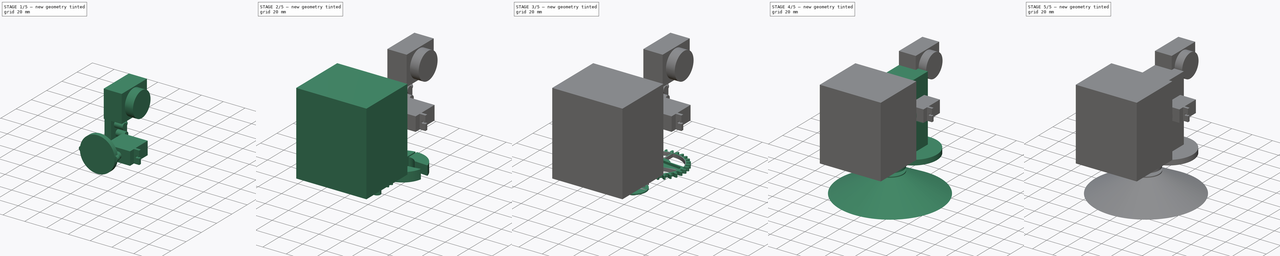
[diagram: build sequence overview — one tinted view per stage of 5, left to right]
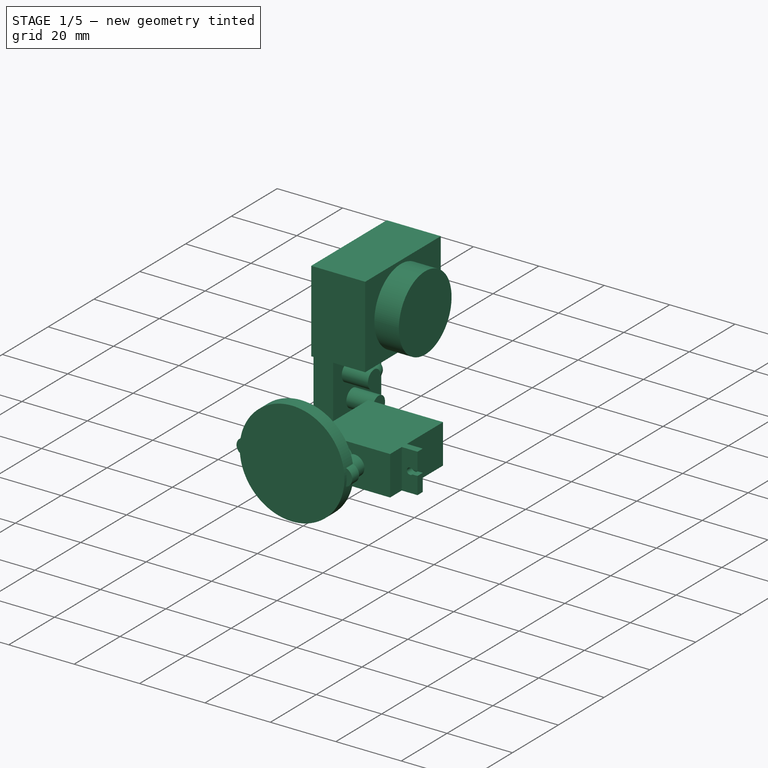
[diagram: stage 1 of 5 — iso view after this stage's code; geometry added in this stage tinted green]
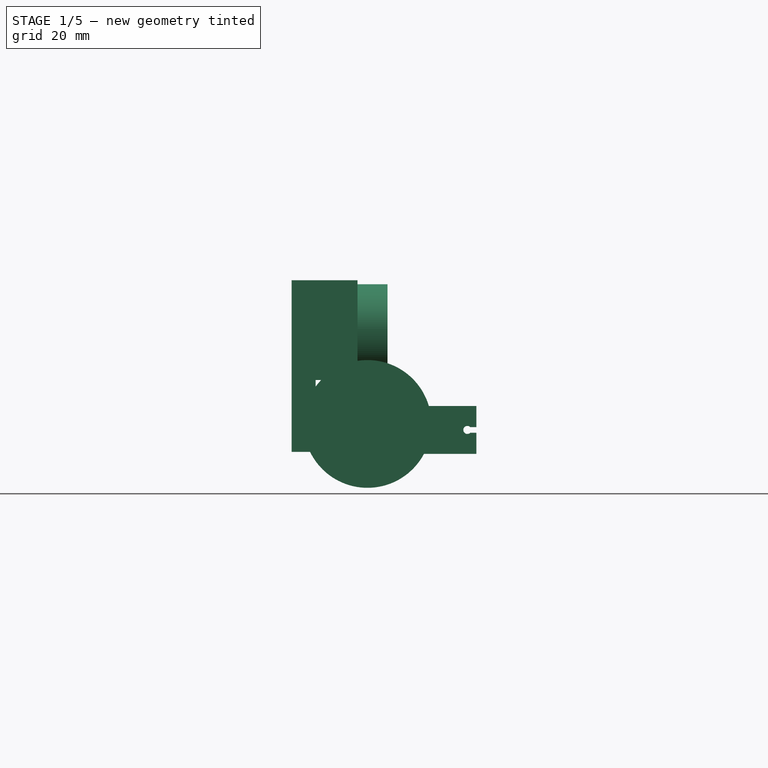
[diagram: stage 1 of 5 — front view after this stage's code; geometry added in this stage tinted green]
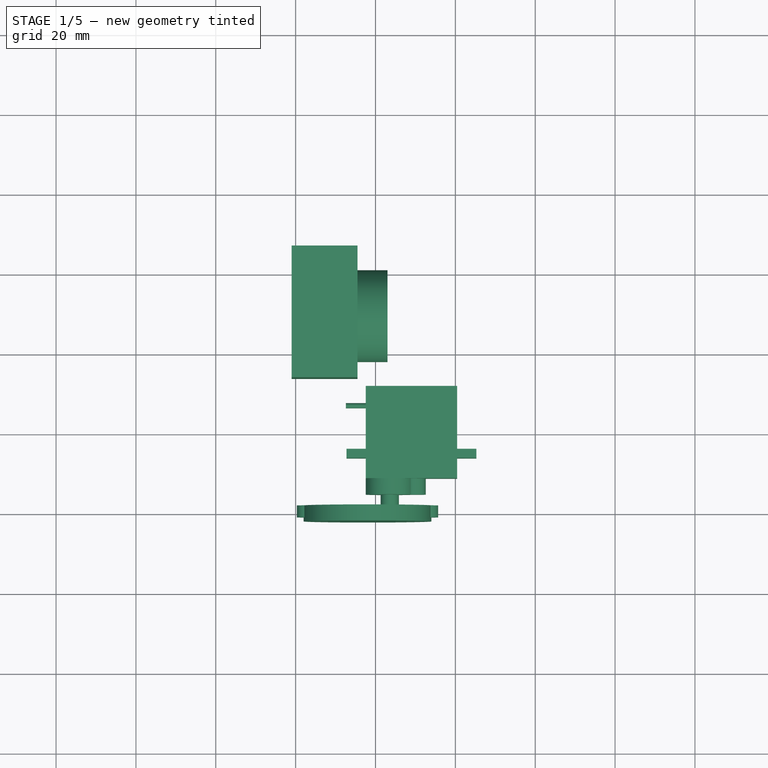
[diagram: stage 1 of 5 — top view after this stage's code; geometry added in this stage tinted green]
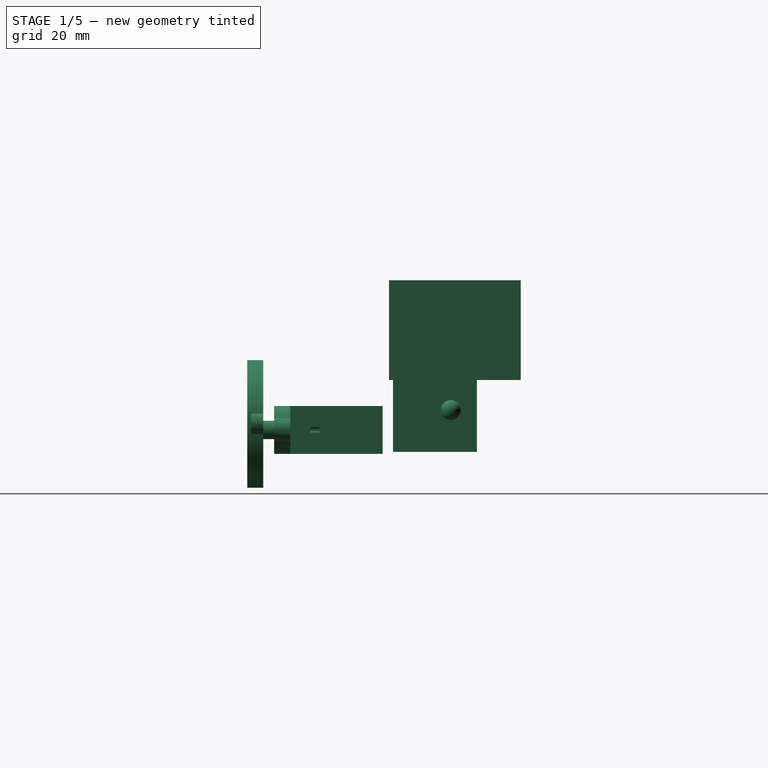
[diagram: stage 1 of 5 — right view after this stage's code; geometry added in this stage tinted green]
FCSTD DOCUMENT  (FreeCAD 0.15R4671 (Git))
Label: base-top-01
License: CC-BY 3.0
LicenseURL: http://creativecommons.org/licenses/by/3.0/
objects: Part::Cylinder×23, Part::Feature×10, Part::FeaturePython×8, Part::Cut×7, PartDesign::Pad×6, Part::MultiFuse×6, Sketcher::SketchObject×4, Part::Box×4, App::DocumentObjectGroup×3, Part::Cone×1, Part::Part2DObjectPython×1
note: 76 computed .brp shape members not serialized (recipe doc carries the construction recipe); baked Part::Feature solids carry a one-line shape summary decoded from their .brp

FEATURE [Part::Cylinder] Cylinder032  label="Cylinder021-holder-servo"
  Angle = 360
  Height = 4
  Placement = pos=(-2,-18,3.5) rot=(1,0,0;1.5708rad)
  Radius = 16
FEATURE [Sketcher::SketchObject] Sketch015
  Placement = pos=(0,-18,0) rot=(1,0,0;1.5708rad)
  sketch-geometry (6):
    g0: LineSegment StartX=-17.2709 StartY=6 StartZ=0 EndX=-2 EndY=8 EndZ=0
    g1: LineSegment StartX=-2 StartY=8 StartZ=0 EndX=13.457 EndY=6.16585 EndZ=0
    g2: LineSegment StartX=13.4049 StartY=0.850143 StartZ=0 EndX=-2 EndY=-1 EndZ=0
    g3: LineSegment StartX=-2 StartY=-1 StartZ=0 EndX=-17.581 EndY=1.17472 EndZ=0
    g4: ArcOfCircle CenterX=13 CenterY=3.51222 CenterZ=0 NormalX=0 NormalY=0 NormalZ=1 Radius=2.69269 StartAngle=4.86332 EndAngle=7.68342
    g5: ArcOfCircle CenterX=-17.2623 CenterY=3.57685 CenterZ=0 NormalX=0 NormalY=0 NormalZ=1 Radius=2.42317 StartAngle=1.57431 EndAngle=4.5805
  constraints (6):
    c: Coincident(g0,g1)
    c: Coincident(g2,g3)
    c: Coincident(g1,g4)
    c: Coincident(g4,g2)
    c: Coincident(g5,g0)
    c: Coincident(g5,g3)
FEATURE [PartDesign::Pad] Pad018
  Length = 3
  Length2 = 100
  Placement = pos=(0,-18,0) rot=(1,0,0;1.5708rad)
  Sketch = -> Sketch015
  Type = 0
FEATURE [Part::Feature] Part__Feature004  label="hc-sr501"
  Placement = pos=(-8,30,27) rot=(0.57735,0.57735,0.57735;2.0944rad)
  shape: bbox 23.1 x 32 x 24 mm, 68 faces (baked)
FEATURE [Part::Feature] Part__Feature005  label="led-5mm"
  Placement = pos=(-19,21,9) rot=(0,1,0;1.5708rad)
  shape: bbox 8.5 x 6 x 6 mm, 6 faces (baked)
FEATURE [Part::FeaturePython] Clone  label="Clone of led-5mm"  # Draft clone (typed FeaturePython)
  Objects = -> [Part__Feature005]
  Placement = pos=(-19,29,7) rot=(0,1,0;1.5708rad)
  Scale = (1,1,1)
FEATURE [Part::FeaturePython] Clone001  label="Clone of led-5mm001"  # Draft clone (typed FeaturePython)
  Objects = -> [Part__Feature005]
  Placement = pos=(-19,23,1) rot=(0,1,0;1.5708rad)
  Scale = (1,1,1)
FEATURE [Part::Box] Box002  label="hc-sc-501-cover-box"
  Height = 25
  Length = 16.5
  Placement = pos=(-21,13.5,14.5) rot=(0,0,1;0rad)
  Width = 33
FEATURE [Part::Box] Box003  label="Cube001"
  Height = 18
  Length = 6
  Placement = pos=(-21,14.5,-3.5) rot=(0,0,1;0rad)
  Width = 21
FEATURE [Part::Cylinder] Cylinder035  label="Cylinder027"
  Angle = 360
  Height = 10
  Placement = pos=(-7,29,27) rot=(0,1,0;1.5708rad)
  Radius = 11.5
FEATURE [Part::Cylinder] Cylinder036  label="Cylinder028"
  Angle = 360
  Height = 10
  Placement = pos=(-17,29,7) rot=(0,1,0;1.5708rad)
  Radius = 2.75
FEATURE [Part::FeaturePython] Clone002  label="Clone of Cylinder028"  # Draft clone (typed FeaturePython)
  Objects = -> [Cylinder036]
  Placement = pos=(-17,23,1) rot=(0,1,0;1.5708rad)
  Scale = (1,1,1)
FEATURE [Part::FeaturePython] Clone003  label="Clone of Cylinder029"  # Draft clone (typed FeaturePython)
  Objects = -> [Cylinder036]
  Placement = pos=(-17,21,9) rot=(0,1,0;1.5708rad)
  Scale = (1,1,1)
FEATURE [Part::Feature] Block_cam_chassis_B_Cu_0
  Placement = pos=(100,50,0) rot=(0,0,1;0rad)
  shape: bbox 50.74 x 28.1 x 2e-07 mm, 0 faces, 0 solids (baked)
FEATURE [App::DocumentObjectGroup] _  label="0"
FEATURE [Part::Feature] Block_cam_chassis_Edge_Cuts_0
  Placement = pos=(100,50,0) rot=(0,0,1;0rad)
  shape: bbox 51.6 x 28.6 x 2e-07 mm, 0 faces, 0 solids (baked)
FEATURE [Part::Feature] Block_cam_chassis_F_Cu_0
  Placement = pos=(100,50,0) rot=(0,0,1;0rad)
  shape: bbox 50.74 x 28.1 x 2e-07 mm, 0 faces, 0 solids (baked)
FEATURE [Part::Feature] Block_cam_chassis_F_SilkS_0
  Placement = pos=(100,50,0) rot=(0,0,1;0rad)
  shape: bbox 51.23 x 33.57 x 2e-07 mm, 0 faces, 0 solids (baked)
FEATURE [Part::MultiFuse] Fusion006  label="pcb-new"
  Placement = pos=(-19,-117.5,-52.5) rot=(0.57735,0.57735,0.57735;2.0944rad)
  Shapes = -> [Block_cam_chassis_B_Cu_0,Block_cam_chassis_F_SilkS_0,Block_cam_chassis_Edge_Cuts_0,Block_cam_chassis_F_Cu_0]
FEATURE [App::DocumentObjectGroup] all
  Group = -> [_,Fusion006]
FEATURE [Part::FeaturePython] Clone004  label="Clone of hxt900-horizontal"  # Draft clone (typed FeaturePython)
  Objects = -> [Part__Feature]
  Placement = pos=(9,-5,2) rot=(0,0.707107,-0.707107;3.14159rad)
  Scale = (1,1,1)
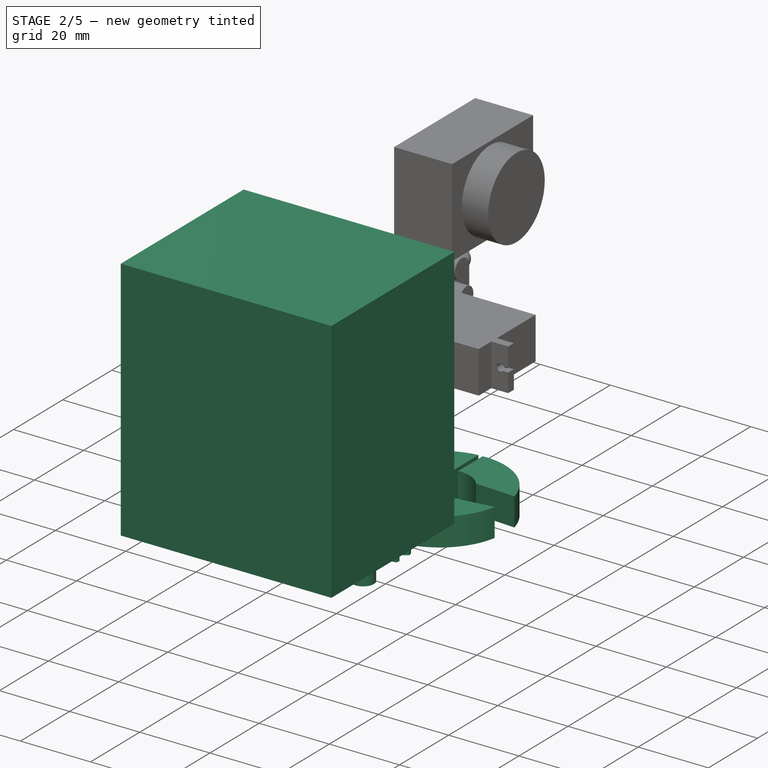
[diagram: stage 2 of 5 — iso view after this stage's code; geometry added in this stage tinted green]
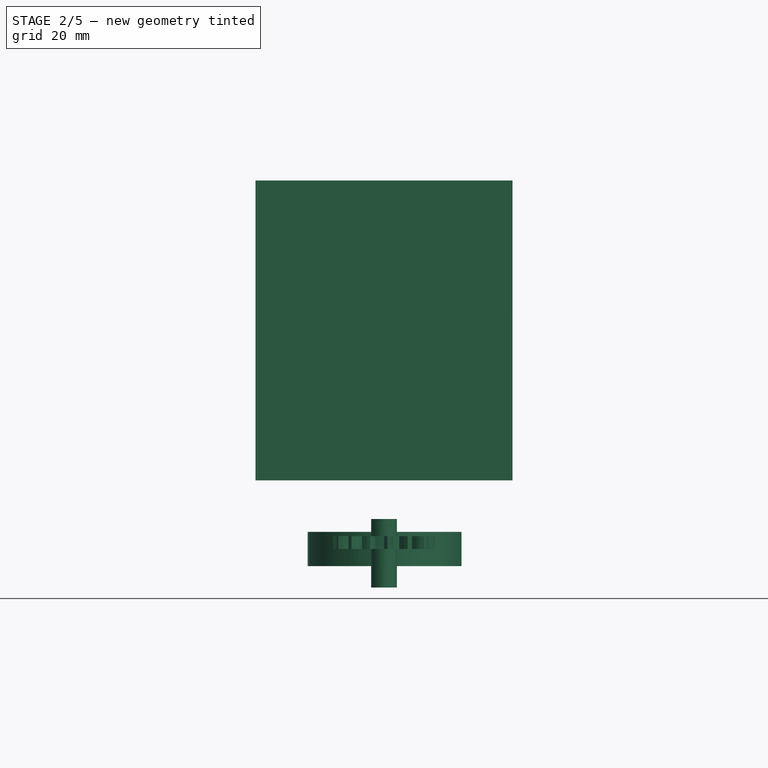
[diagram: stage 2 of 5 — front view after this stage's code; geometry added in this stage tinted green]
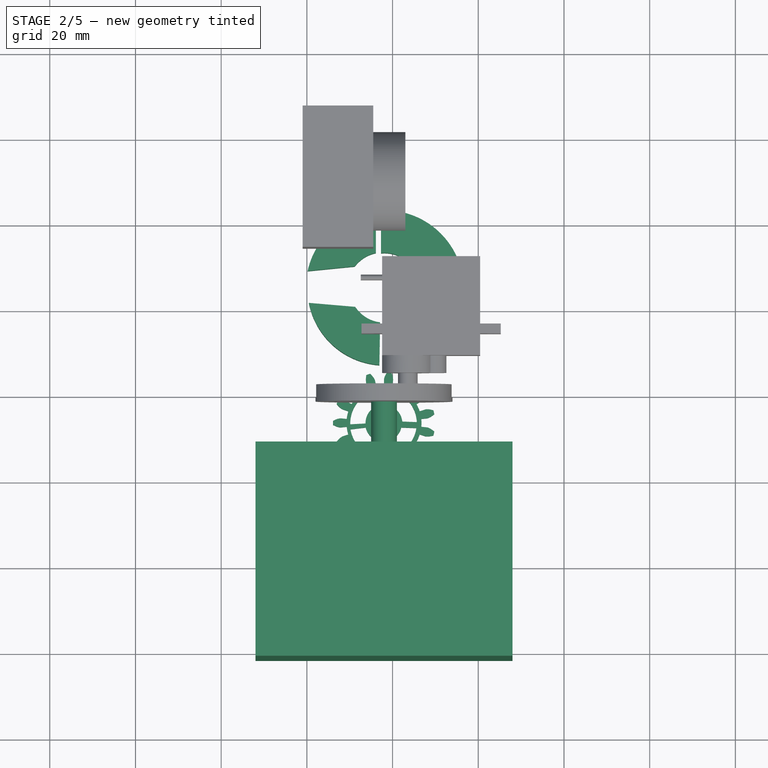
[diagram: stage 2 of 5 — top view after this stage's code; geometry added in this stage tinted green]
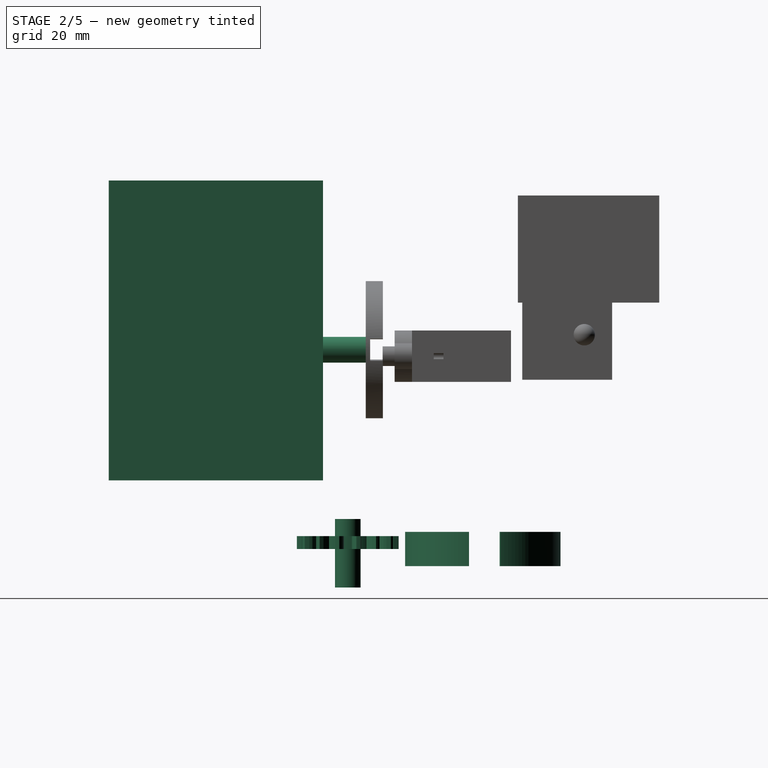
[diagram: stage 2 of 5 — right view after this stage's code; geometry added in this stage tinted green]
FEATURE [Part::FeaturePython] Gear006  # WARN: FeaturePython — macro-defined, semantics opaque (R4)
  CenterRadius = 3
  GearHeight = 3
  LevelOfDetail = 3
  Module = 1.4
  NumberTeeth = 15
  Placement = pos=(-2,-26.2,-43) rot=(0,0,1;0.10472rad)
  PressureAngle = 15
  Verbose = false
FEATURE [Part::Cylinder] Cylinder026
  Angle = 360
  Height = 16
  Placement = pos=(-2,-26.2,-52) rot=(0,0,1;0rad)
  Radius = 3
FEATURE [Part::Cylinder] Cylinder031  label="Cylinder022-holder-axis"
  Angle = 360
  Height = 12
  Placement = pos=(-2,-22,3.5) rot=(1,0,0;1.5708rad)
  Radius = 3
FEATURE [Part::Cut] Cut006
  Base = -> Cylinder032
  Tool = -> Pad018
FEATURE [Sketcher::SketchObject] Sketch016
  Placement = pos=(0,0,-39) rot=(0,0,1;0rad)
  sketch-geometry (16):
    g0: ArcOfCircle CenterX=-2.10087 CenterY=5.29786 CenterZ=0 NormalX=0 NormalY=0 NormalZ=1 Radius=18.163 StartAngle=1.66999 EndAngle=2.92373
    g1: ArcOfCircle CenterX=-2.22597 CenterY=5.37078 CenterZ=0 NormalX=0 NormalY=0 NormalZ=1 Radius=8.24503 StartAngle=1.77323 EndAngle=2.49798
    g2: ArcOfCircle CenterX=-1.88426 CenterY=4.88446 CenterZ=0 NormalX=0 NormalY=0 NormalZ=1 Radius=18.5453 StartAngle=0.249189 EndAngle=1.61291
    g3: ArcOfCircle CenterX=-1.85977 CenterY=5.39036 CenterZ=0 NormalX=0 NormalY=0 NormalZ=1 Radius=8.05275 StartAngle=0.633751 EndAngle=1.6765
    g4: ArcOfCircle CenterX=-1.79542 CenterY=5.32771 CenterZ=0 NormalX=0 NormalY=0 NormalZ=1 Radius=18.0965 StartAngle=3.33815 EndAngle=4.64144
    g5: ArcOfCircle CenterX=-2.16867 CenterY=5.25737 CenterZ=0 NormalX=0 NormalY=0 NormalZ=1 Radius=18.0849 StartAngle=4.75347 EndAngle=6.10732
    g6: ArcOfCircle CenterX=-1.91819 CenterY=5.29786 CenterZ=0 NormalX=0 NormalY=0 NormalZ=1 Radius=8.1091 StartAngle=3.72027 EndAngle=4.58927
    g7: ArcOfCircle CenterX=-1.82168 CenterY=4.84748 CenterZ=0 NormalX=0 NormalY=0 NormalZ=1 Radius=7.60929 StartAngle=4.76843 EndAngle=5.67982
    g8: LineSegment StartX=-19.8345 StartY=9.22365 StartZ=0 EndX=-8.82145 EndY=10.3185 EndZ=0
    g9: LineSegment StartX=-3.89963 StartY=23.3716 StartZ=0 EndX=-3.88368 EndY=13.4474 EndZ=0
    g10: LineSegment StartX=-2.70939 StartY=13.3982 StartZ=0 EndX=-2.66508 EndY=23.4133 EndZ=0
    g11: LineSegment StartX=4.62924 StartY=10.159 StartZ=0 EndX=16.0882 EndY=9.45806 EndZ=0
    g12: LineSegment StartX=4.44406 StartY=0.529861 StartZ=0 EndX=15.6373 EndY=2.09318 EndZ=0
    g13: LineSegment StartX=-8.707 StartY=0.862821 StartZ=0 EndX=-19.5434 EndY=1.79353 EndZ=0
    g14: LineSegment StartX=-2.91404 StartY=-2.74987 StartZ=0 EndX=-3.07821 EndY=-12.7233 EndZ=0
    g15: LineSegment StartX=-1.39545 StartY=-2.74987 StartZ=0 EndX=-1.4259 EndY=-12.8123 EndZ=0
  constraints (16):
    c: Coincident(g0,g8)
    c: Coincident(g8,g1)
    c: Coincident(g9,g1)
    c: Coincident(g0,g9)
    c: Coincident(g10,g2)
    c: Coincident(g10,g3)
    c: Coincident(g3,g11)
    c: Coincident(g11,g2)
    c: Coincident(g12,g7)
    c: Coincident(g12,g5)
    c: Coincident(g15,g7)
    c: Coincident(g5,g15)
    c: Coincident(g14,g6)
    c: Coincident(g4,g14)
    c: Coincident(g6,g13)
    c: Coincident(g13,g4)
FEATURE [PartDesign::Pad] Pad020
  Length = 8
  Length2 = 100
  Placement = pos=(0,0,-39) rot=(0,0,1;0rad)
  Reversed = true
  Sketch = -> Sketch016
  Type = 0
FEATURE [Sketcher::SketchObject] Sketch017
  Placement = pos=(0,0,-39) rot=(0,0,1;0rad)
  sketch-geometry (16):
    g0: ArcOfCircle CenterX=-2.05444 CenterY=-26.3266 CenterZ=0 NormalX=0 NormalY=0 NormalZ=1 Radius=7.82506 StartAngle=1.6905 EndAngle=3.16833
    g1: ArcOfCircle CenterX=-2.06954 CenterY=-26.3115 CenterZ=0 NormalX=0 NormalY=0 NormalZ=1 Radius=7.73462 StartAngle=0.0370345 EndAngle=1.55758
    g2: ArcOfCircle CenterX=-1.97124 CenterY=-26.365 CenterZ=0 NormalX=0 NormalY=0 NormalZ=1 Radius=7.60158 StartAngle=4.83214 EndAngle=6.14387
    g3: ArcOfCircle CenterX=-1.97124 CenterY=-26.365 CenterZ=0 NormalX=0 NormalY=0 NormalZ=1 Radius=7.97143 StartAngle=3.31341 EndAngle=4.66228
    g4: ArcOfCircle CenterX=-2.05355 CenterY=-26.2113 CenterZ=0 NormalX=0 NormalY=0 NormalZ=1 Radius=4.25482 StartAngle=1.78583 EndAngle=3.17329
    g5: ArcOfCircle CenterX=-2.08299 CenterY=-26.3328 CenterZ=0 NormalX=0 NormalY=0 NormalZ=1 Radius=4.36909 StartAngle=0.101362 EndAngle=1.54923
    g6: ArcOfCircle CenterX=-2.05444 CenterY=-26.3266 CenterZ=0 NormalX=0 NormalY=0 NormalZ=1 Radius=4.20283 StartAngle=4.91524 EndAngle=6.05065
    g7: ArcOfCircle CenterX=-2.06954 CenterY=-26.3115 CenterZ=0 NormalX=0 NormalY=0 NormalZ=1 Radius=4.31363 StartAngle=3.37187 EndAngle=4.61089
    g8: LineSegment StartX=-2.98886 StartY=-18.5575 StartZ=0 EndX=-2.96146 EndY=-22.0545 EndZ=0
    g9: LineSegment StartX=-1.98878 StartY=-21.9647 StartZ=0 EndX=-1.96733 EndY=-18.5776 EndZ=0
    g10: LineSegment StartX=2.26367 StartY=-25.8907 StartZ=0 EndX=5.65978 EndY=-26.0251 EndZ=0
    g11: LineSegment StartX=2.03527 StartY=-27.2951 StartZ=0 EndX=5.55669 EndY=-27.4205 EndZ=0
    g12: LineSegment StartX=-1.20773 StartY=-30.4433 StartZ=0 EndX=-1.06315 EndY=-33.9121 EndZ=0
    g13: LineSegment StartX=-2.50663 StartY=-30.6029 StartZ=0 EndX=-2.37053 EndY=-34.3264 EndZ=0
    g14: LineSegment StartX=-6.26931 StartY=-27.2961 StartZ=0 EndX=-9.82529 EndY=-27.7279 EndZ=0
    g15: LineSegment StartX=-9.8767 StartY=-26.5358 StartZ=0 EndX=-6.30623 EndY=-26.3462 EndZ=0
  constraints (16):
    c: Coincident(g0,g15)
    c: Coincident(g15,g4)
    c: Coincident(g4,g8)
    c: Coincident(g8,g0)
    c: Coincident(g9,g1)
    c: Coincident(g9,g5)
    c: Coincident(g5,g10)
    c: Coincident(g10,g1)
    c: Coincident(g6,g11)
    c: Coincident(g11,g2)
    c: Coincident(g12,g6)
    c: Coincident(g2,g12)
    c: Coincident(g13,g3)
    c: Coincident(g13,g7)
    c: Coincident(g14,g7)
    c: Coincident(g14,g3)
FEATURE [PartDesign::Pad] Pad021
  Length = 8
  Length2 = 100
  Placement = pos=(0,0,-39) rot=(0,0,1;0rad)
  Reversed = true
  Sketch = -> Sketch017
  Type = 0
FEATURE [Part::Cut] Cut009
  Base = -> Gear006
  Tool = -> Pad021
FEATURE [Part::MultiFuse] Fusion003  label="rest-gear"
  Shapes = -> [Cylinder026,Cut009]
FEATURE [Part::Box] Box001  label="camera-boundary-box"
  Height = 70
  Length = 60
  Placement = pos=(-32,-82,-27) rot=(0,0,1;0rad)
  Width = 50
FEATURE [Part::MultiFuse] Fusion004  label="camera-rotor"
  Shapes = -> [Cut006,Cylinder031]
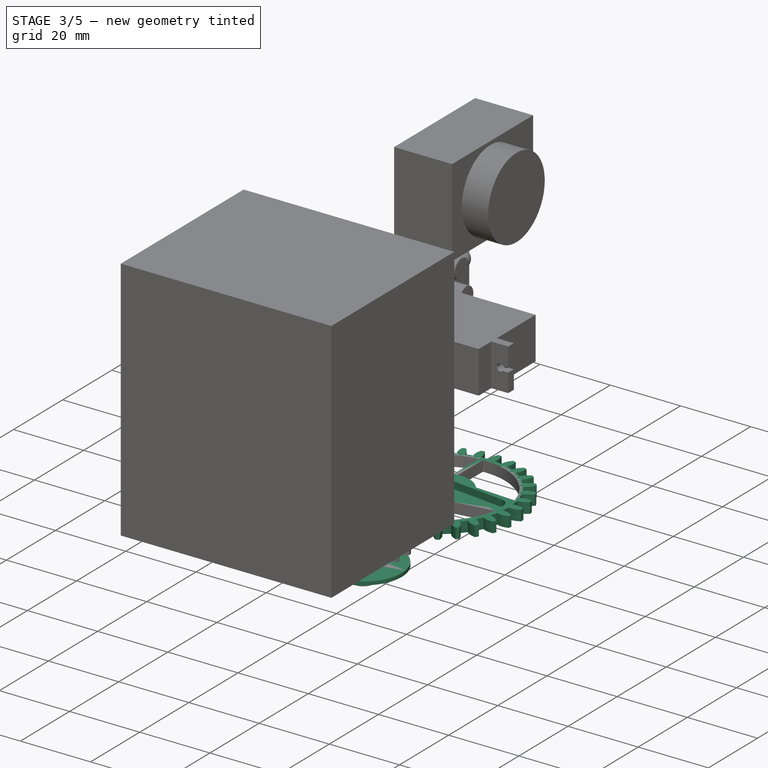
[diagram: stage 3 of 5 — iso view after this stage's code; geometry added in this stage tinted green]
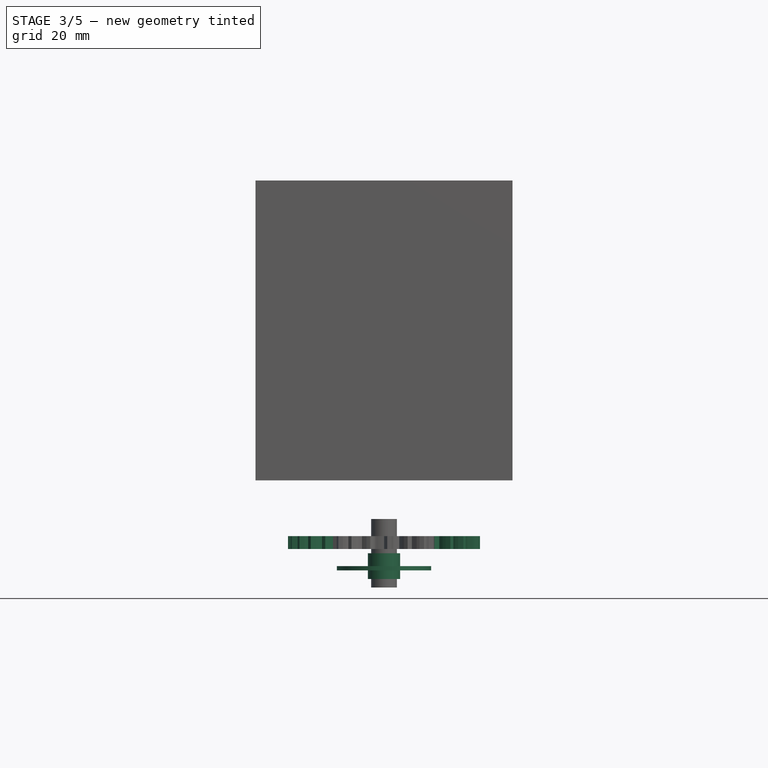
[diagram: stage 3 of 5 — front view after this stage's code; geometry added in this stage tinted green]
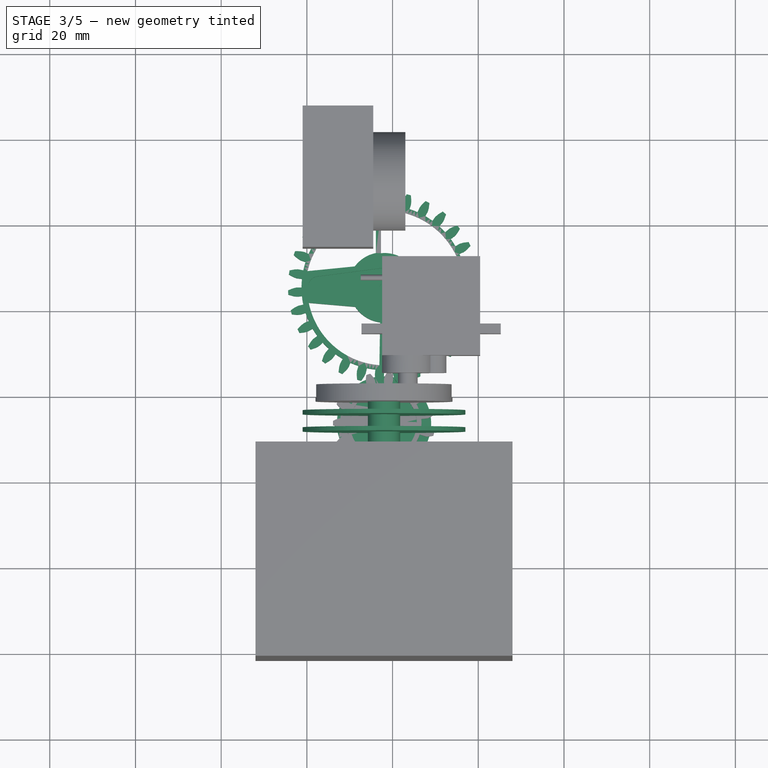
[diagram: stage 3 of 5 — top view after this stage's code; geometry added in this stage tinted green]
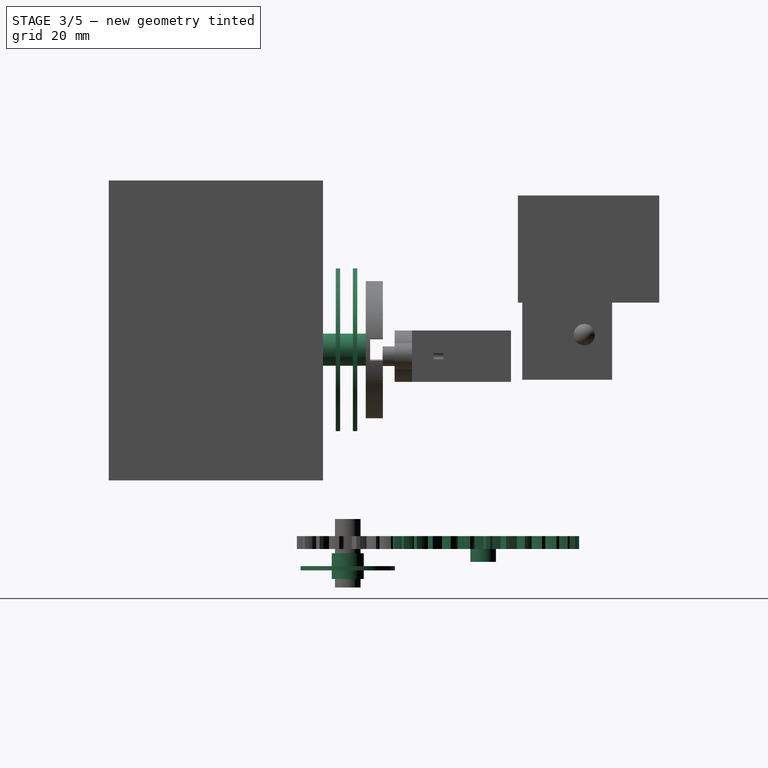
[diagram: stage 3 of 5 — right view after this stage's code; geometry added in this stage tinted green]
FEATURE [App::DocumentObjectGroup] Group  label="top"
  Group = -> [Part__Feature,Part__Feature001,Cut002,Cut003]
FEATURE [Part::Feature] Part__Feature002  label="servo-arm"
  Placement = pos=(-2,-20.5,3.6) rot=(-1,0,0;1.5708rad)
  shape: bbox 34 x 5 x 8 mm, 17 faces (baked)
FEATURE [Part::Feature] Part__Feature003  label="servo-arm001"
  Placement = pos=(-2,5.4,-41.5) rot=(0,0,1;0rad)
  shape: bbox 34 x 8 x 5 mm, 17 faces (baked)
FEATURE [Part::FeaturePython] Gear005  # WARN: FeaturePython — macro-defined, semantics opaque (R4)
  CenterRadius = 1
  GearHeight = 3
  LevelOfDetail = 3
  Module = 1.4
  NumberTeeth = 30
  Placement = pos=(-2,5.4,-43) rot=(0,0,1;0rad)
  PressureAngle = 15
  Verbose = false
FEATURE [Part::Cylinder] Cylinder024
  Angle = 360
  Height = 3
  Placement = pos=(-2,5.4,-46) rot=(0,0,1;0rad)
  Radius = 3
FEATURE [Part::Cylinder] Cylinder028  label="Cylinder021-case001"
  Angle = 360
  Height = 1
  Placement = pos=(-2,-24,3.5) rot=(1,0,0;1.5708rad)
  Radius = 19
FEATURE [Part::Cylinder] Cylinder029  label="Cylinder022-holder-cut"
  Angle = 360
  Height = 12
  Placement = pos=(-2,-22,3.5) rot=(1,0,0;1.5708rad)
  Radius = 3.75
FEATURE [Part::Cylinder] Cylinder030  label="Cylinder021-holder001"
  Angle = 360
  Height = 1
  Placement = pos=(-2,-28,3.5) rot=(1,0,0;1.5708rad)
  Radius = 19
FEATURE [Part::Cylinder] Cylinder033  label="Cylinder028-base"
  Angle = 360
  Height = 1
  Placement = pos=(-2,-26.2,-48) rot=(0,0,1;0rad)
  Radius = 11
FEATURE [Part::Cylinder] Cylinder034  label="Cylinder020-base-cut"
  Angle = 360
  Height = 6
  Placement = pos=(-2,-26.2,-50) rot=(0,0,1;0rad)
  Radius = 3.75
FEATURE [Part::Part2DObjectPython] Clone2D  label="Clone of Sketch015 (2D)"  # Draft 2D object (typed FeaturePython)
  Objects = -> [Sketch015]
  Placement = pos=(0,2,-40) rot=(0,0,1;0rad)
  Scale = (1,1,1)
FEATURE [PartDesign::Pad] Pad019
  Length = 2
  Length2 = 100
  Placement = pos=(0,2,-40) rot=(0,0,1;0rad)
  Reversed = true
  Sketch = -> Clone2D
  Type = 0
FEATURE [Part::Cut] Cut007
  Base = -> Gear005
  Tool = -> Pad019
FEATURE [Part::Cut] Cut008
  Base = -> Cut007
  Tool = -> Pad020
FEATURE [Part::MultiFuse] Fusion002  label="moving-gear"
  Shapes = -> [Cut008,Cylinder024]
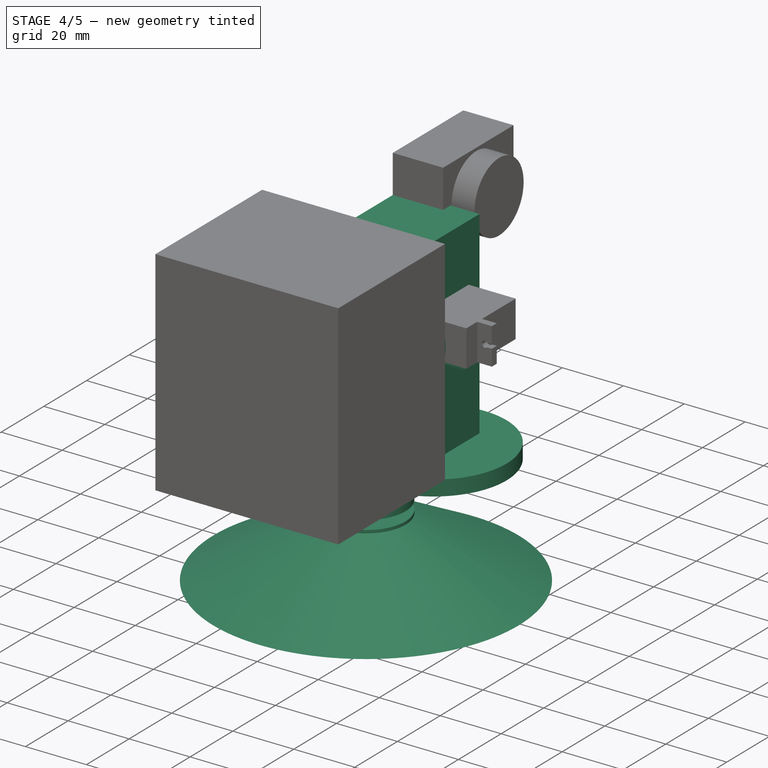
[diagram: stage 4 of 5 — iso view after this stage's code; geometry added in this stage tinted green]
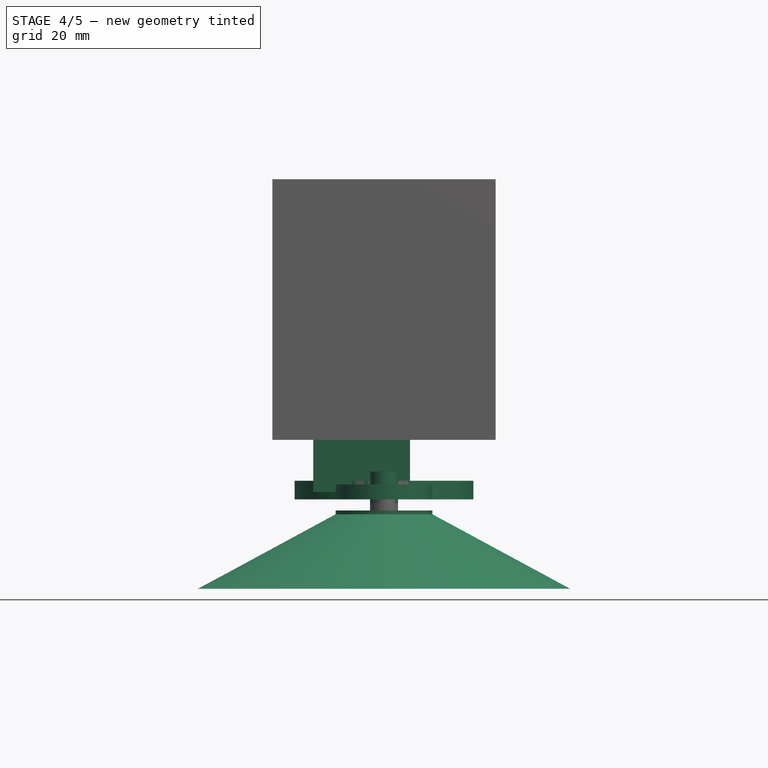
[diagram: stage 4 of 5 — front view after this stage's code; geometry added in this stage tinted green]
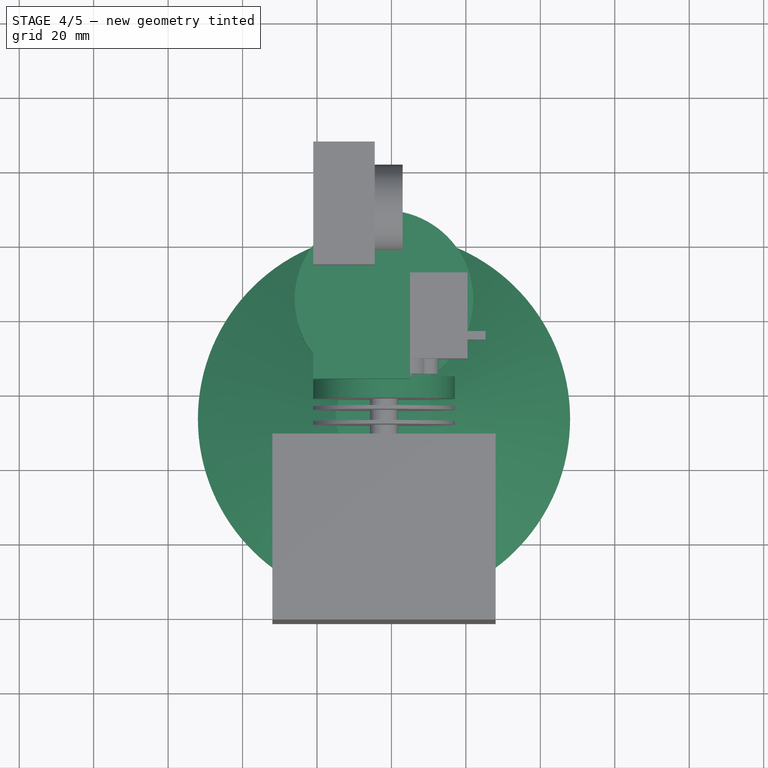
[diagram: stage 4 of 5 — top view after this stage's code; geometry added in this stage tinted green]
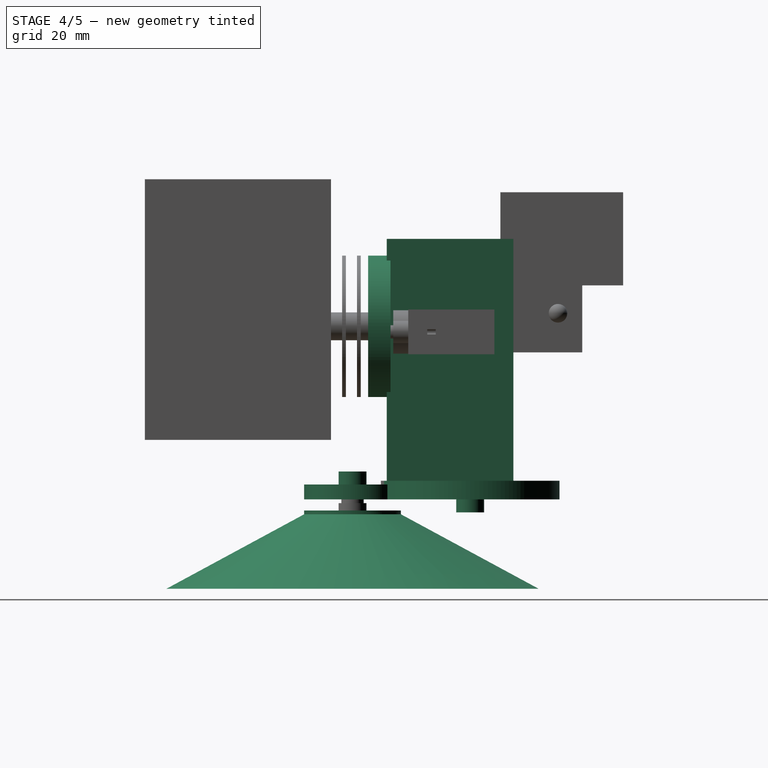
[diagram: stage 4 of 5 — right view after this stage's code; geometry added in this stage tinted green]
FEATURE [Part::Cylinder] Cylinder003
  Angle = 360
  Height = 6
  Placement = pos=(14,-1,0) rot=(1,0,0;1.5708rad)
  Radius = 0.65
FEATURE [PartDesign::Pad] Pad002
  Length = 14
  Length2 = 100
  Midplane = true
  Sketch = -> Sketch
  Type = 0
FEATURE [Part::Box] Box  label="Cube-case"
  Height = 68
  Length = 26
  Placement = pos=(-21,-17,-41) rot=(0,0,1;0rad)
  Width = 34
FEATURE [Part::Cylinder] Cylinder020  label="Cylinder020-case"
  Angle = 360
  Height = 3.5
  Placement = pos=(-2,-26.2,-39) rot=(0,0,1;0rad)
  Radius = 3.75
FEATURE [Part::Cylinder] Cylinder021  label="Cylinder021-case"
  Angle = 360
  Height = 6
  Placement = pos=(-2,-16,3.5) rot=(1,0,0;1.5708rad)
  Radius = 19
FEATURE [Part::Cylinder] Cylinder022  label="Cylinder022-case"
  Angle = 360
  Height = 5
  Placement = pos=(-2,5.4,-43) rot=(0,0,1;0rad)
  Radius = 24
FEATURE [Part::Cylinder] Cylinder023  label="Cylinder023-case"
  Angle = 360
  Height = 4
  Placement = pos=(-2,-26.2,-43) rot=(0,0,1;0rad)
  Radius = 13
FEATURE [Part::Cylinder] Cylinder025  label="Cylinder025-case"
  Angle = 360
  Height = 3.5
  Placement = pos=(-2,5.4,-46.5) rot=(0,0,1;0rad)
  Radius = 3.75
FEATURE [Part::Cone] Cone  label="Cone-base"
  Angle = 360
  Height = 20
  Placement = pos=(-2,-26.2,-67) rot=(0,0,1;0rad)
  Radius1 = 50
  Radius2 = 13
FEATURE [Part::Cylinder] Cylinder027  label="Cylinder027-base"
  Angle = 360
  Height = 1
  Placement = pos=(-2,-26.2,-47) rot=(0,0,1;0rad)
  Radius = 13
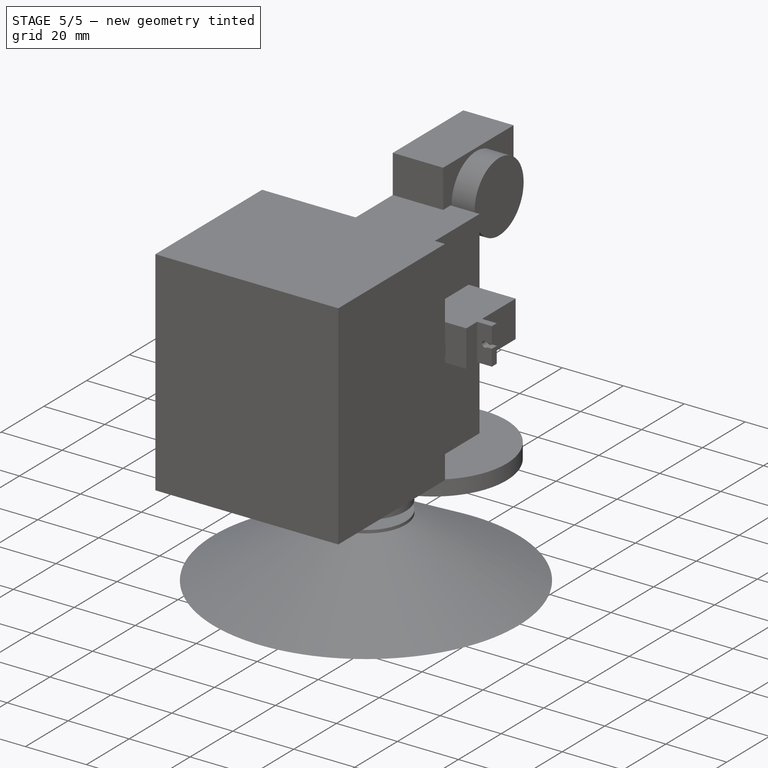
[diagram: stage 5 of 5 — iso view after this stage's code; geometry added in this stage tinted green]
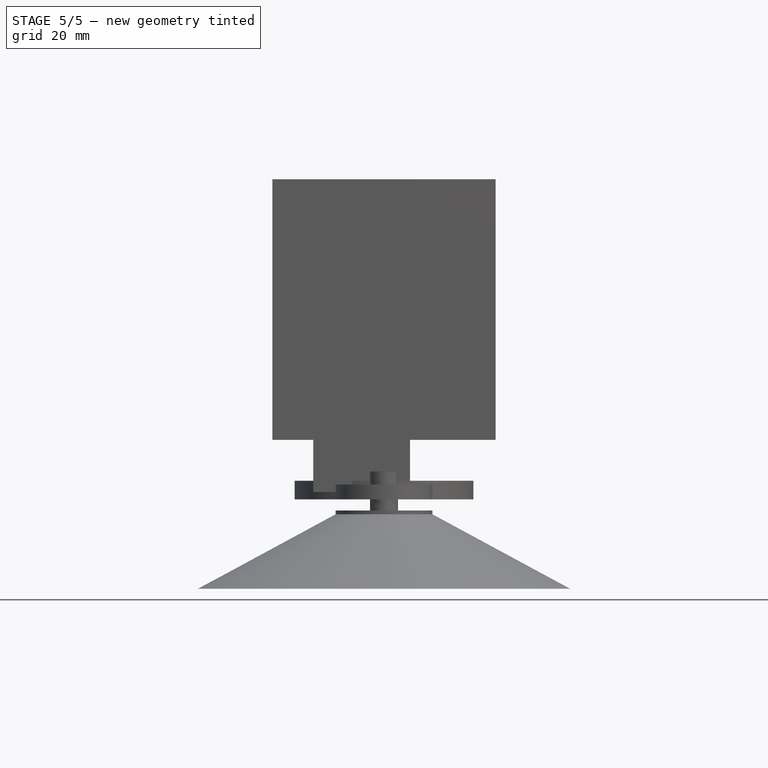
[diagram: stage 5 of 5 — front view after this stage's code; geometry added in this stage tinted green]
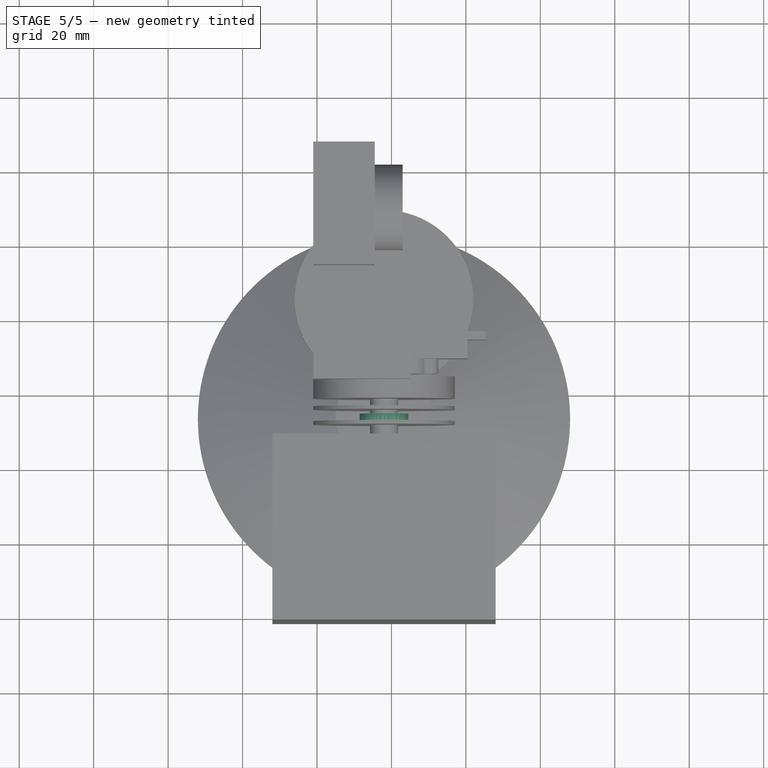
[diagram: stage 5 of 5 — top view after this stage's code; geometry added in this stage tinted green]
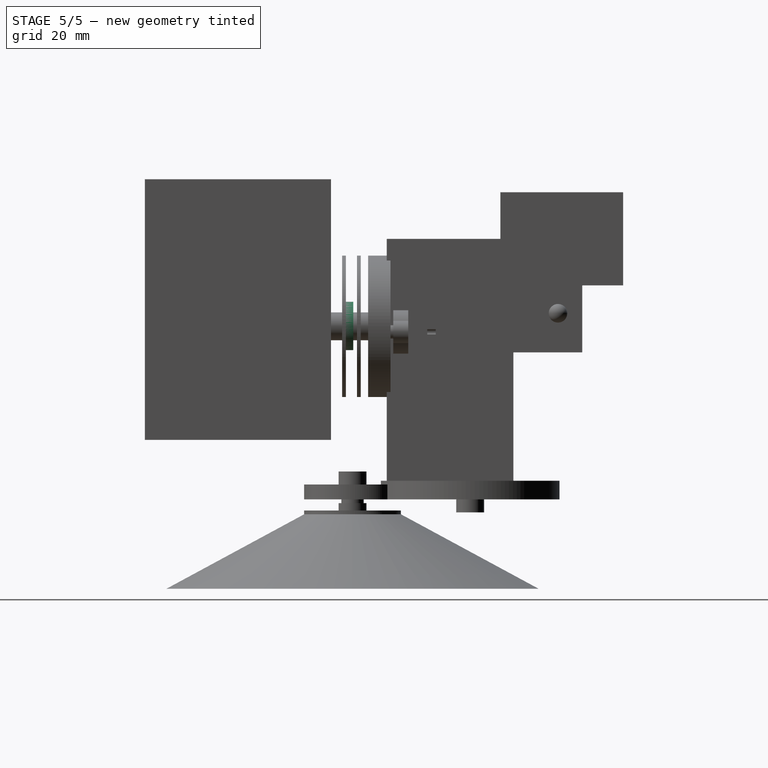
[diagram: stage 5 of 5 — right view after this stage's code; geometry added in this stage tinted green]
FEATURE [Part::Feature] Part__Feature  label="hxt900-horizontal"
  Placement = pos=(-2,-5,9) rot=(0.57735,0.57735,-0.57735;2.0944rad)
  shape: bbox 12 x 29.96 x 32.69 mm, 44 faces (baked)
FEATURE [Part::Cylinder] Cylinder
  Angle = 360
  Height = 4
  Placement = pos=(-5.43,-7,0) rot=(1,0,0;1.5708rad)
  Radius = 6.5
FEATURE [Part::Cylinder] Cylinder001
  Angle = 360
  Height = 4
  Placement = pos=(0.57,-7,0) rot=(1,0,0;1.5708rad)
  Radius = 3.5
FEATURE [Sketcher::SketchObject] Sketch
  sketch-geometry (12):
    g0: LineSegment StartX=-17 StartY=-1.5 StartZ=0 EndX=-12 EndY=-1.5 EndZ=0
    g1: LineSegment StartX=-12 StartY=-1.5 StartZ=0 EndX=-12 EndY=-6.3 EndZ=0
    g2: LineSegment StartX=-12 StartY=-6.3 StartZ=0 EndX=12 EndY=-6.3 EndZ=0
    g3: LineSegment StartX=12 StartY=-6.3 StartZ=0 EndX=12 EndY=-1.5 EndZ=0
    g4: LineSegment StartX=12 StartY=-1.5 StartZ=0 EndX=17 EndY=-1.5 EndZ=0
    g5: LineSegment StartX=17 StartY=-1.5 StartZ=0 EndX=17 EndY=-7 EndZ=0
    g6: LineSegment StartX=17 StartY=-7 StartZ=0 EndX=5.3 EndY=-7 EndZ=0
    g7: LineSegment StartX=5.3 StartY=-7 StartZ=0 EndX=5.3 EndY=-10.5 EndZ=0
    g8: LineSegment StartX=5.3 StartY=-10.5 StartZ=0 EndX=-13 EndY=-10.5 EndZ=0
    g9: LineSegment StartX=-13 StartY=-10.5 StartZ=0 EndX=-13 EndY=-7 EndZ=0
    g10: LineSegment StartX=-13 StartY=-7 StartZ=0 EndX=-17 EndY=-7 EndZ=0
    g11: LineSegment StartX=-17 StartY=-7 StartZ=0 EndX=-17 EndY=-1.5 EndZ=0
  constraints (36):
    c: Horizontal(g0)
    c: Coincident(g0,g1)
    c: Vertical(g1)
    c: Coincident(g1,g2)
    c: Horizontal(g2)
    c: Coincident(g2,g3)
    c: Vertical(g3)
    c: Coincident(g3,g4)
    c: Horizontal(g4)
    c: Coincident(g4,g5)
    c: Vertical(g5)
    c: Coincident(g5,g6)
    c: Horizontal(g6)
    c: Coincident(g6,g7)
    c: Vertical(g7)
    c: Coincident(g7,g8)
    c: Horizontal(g8)
    c: Coincident(g8,g9)
    c: Vertical(g9)
    c: Coincident(g9,g10)
    c: Horizontal(g10)
    c: Coincident(g10,g11)
    c: Coincident(g11,g0)
    c: Vertical(g11)
    c: DistanceX(g-1,g0) = -12
    c: DistanceX(g-1,g3) = 12
    c: DistanceX(g-1,g0) = -17
    c: DistanceX(g-1,g4) = 17
    c: DistanceX(g-1,g8) = -13
    c: DistanceX(g-1,g7) = 5.3
    c: DistanceY(g-1,g1) = -6.3
    c: DistanceY(g-1,g10) = -7
    c: DistanceY(g-1,g5) = -7
    c: DistanceY(g-1,g0) = -1.5
    c: DistanceY(g-1,g4) = -1.5
    c: DistanceY(g6,g7) = -3.5
FEATURE [PartDesign::Pad] Pad
  Length = 14
  Length2 = 100
  Midplane = true
  Sketch = -> Sketch
  Type = 0
FEATURE [Part::Cylinder] Cylinder002
  Angle = 360
  Height = 6
  Placement = pos=(-14,-1,0) rot=(1,0,0;1.5708rad)
  Radius = 0.65
FEATURE [Part::Feature] Part__Feature001  label="hxt900-vertical"
  Placement = pos=(-2,0,-26) rot=(0.707107,0.707107,0;3.14159rad)
  shape: bbox 12 x 32.69 x 29.96 mm, 44 faces (baked)
FEATURE [Part::Cylinder] Cylinder007
  Angle = 360
  Height = 3
  Placement = pos=(-5.4,46,0) rot=(1,0,0;1.5708rad)
  Radius = 5
FEATURE [Part::Cylinder] Cylinder008
  Angle = 360
  Height = 3
  Placement = pos=(-5.4,46,0) rot=(1,0,0;1.5708rad)
  Radius = 6.5
FEATURE [Part::Cut] Cut002
  Base = -> Cylinder008
  Placement = pos=(3.4,-72,3.6) rot=(0,0,1;0rad)
  Tool = -> Cylinder007
FEATURE [Part::MultiFuse] Fusion001
  Shapes = -> [Cylinder002,Cylinder001,Cylinder003,Cylinder]
FEATURE [Part::Cut] Cut003
  Base = -> Pad002
  Placement = pos=(-2,0,-26) rot=(0.57735,-0.57735,-0.57735;2.0944rad)
  Tool = -> Fusion001
FEATURE [Part::FeaturePython] Gear  # WARN: FeaturePython — macro-defined, semantics opaque (R4)
  CenterRadius = 10
  GearHeight = 10
  LevelOfDetail = 10
  Module = 10
  NumberTeeth = 20
  PressureAngle = 20
  Verbose = true
FEATURE [Part::MultiFuse] Fusion
  Shapes = -> [Cylinder002,Cylinder001,Cylinder003,Cylinder,Gear]
FEATURE [Part::Cut] Cut
  Base = -> Pad
  Placement = pos=(-2,-5,9) rot=(0,-1,0;1.5708rad)
  Tool = -> Fusion
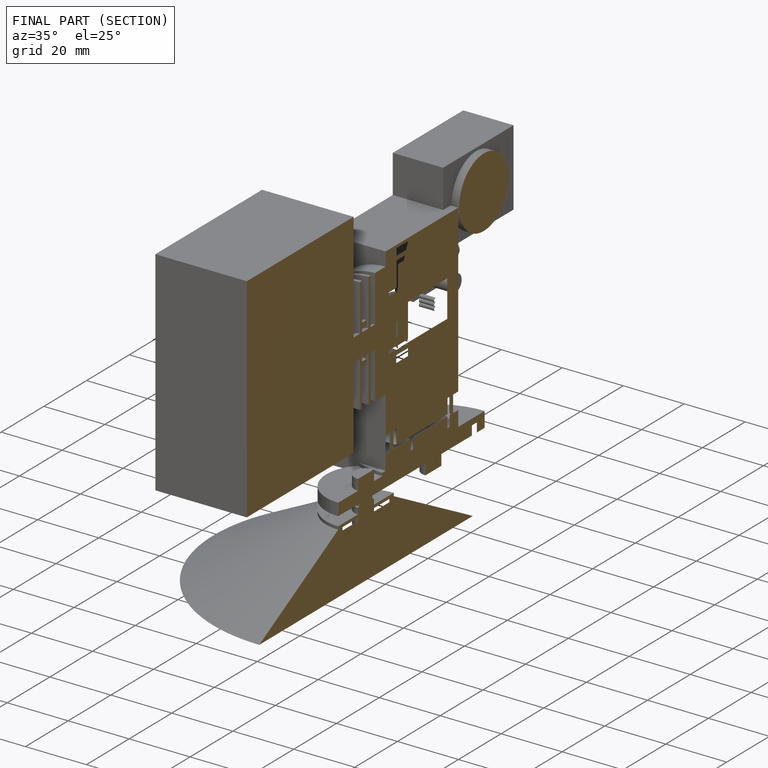
[diagram: finished part — half-section view (interior)]
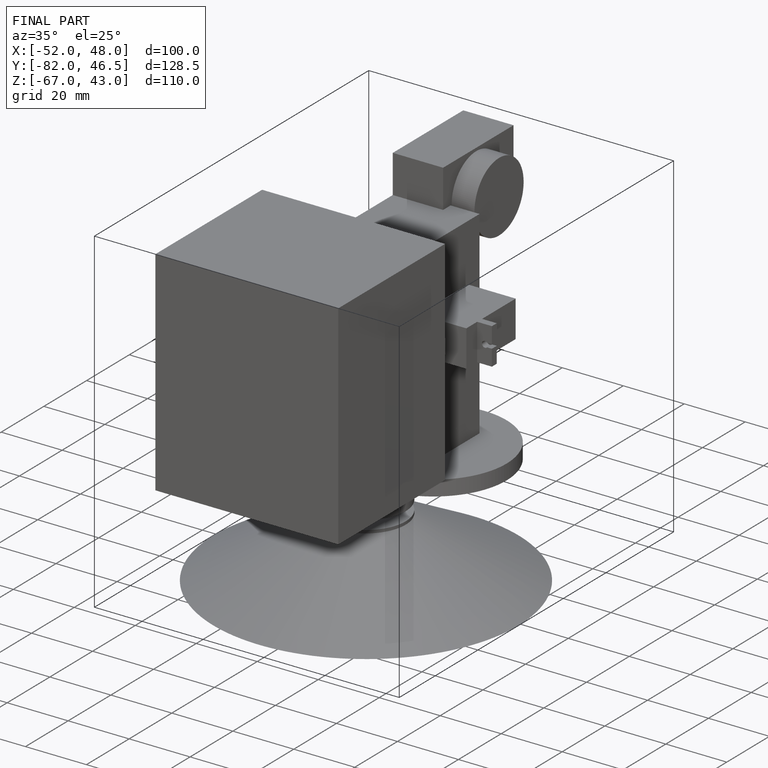
[diagram: finished part — iso view with bounding-box wireframe]
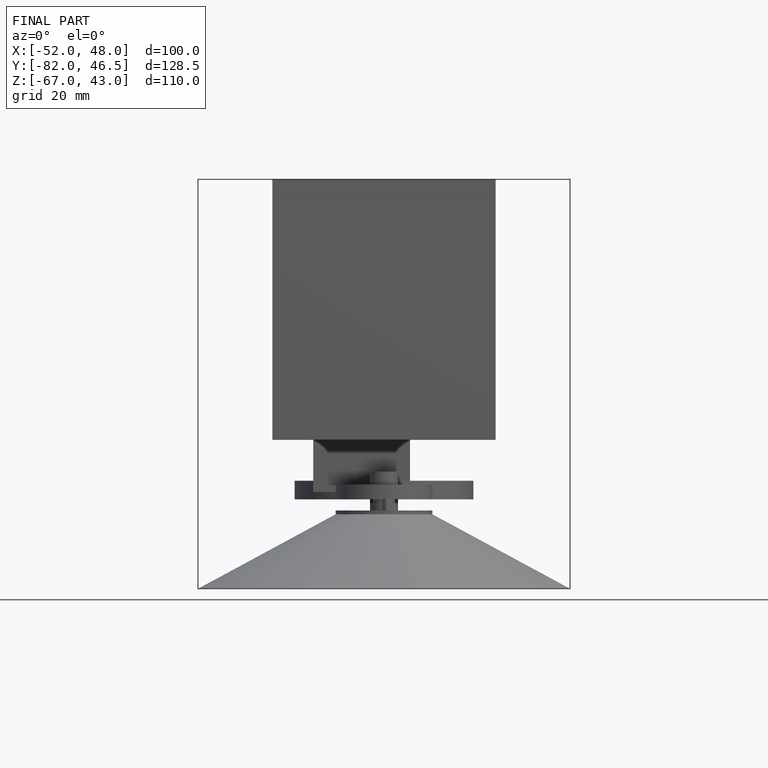
[diagram: finished part — front view with bounding-box wireframe]
